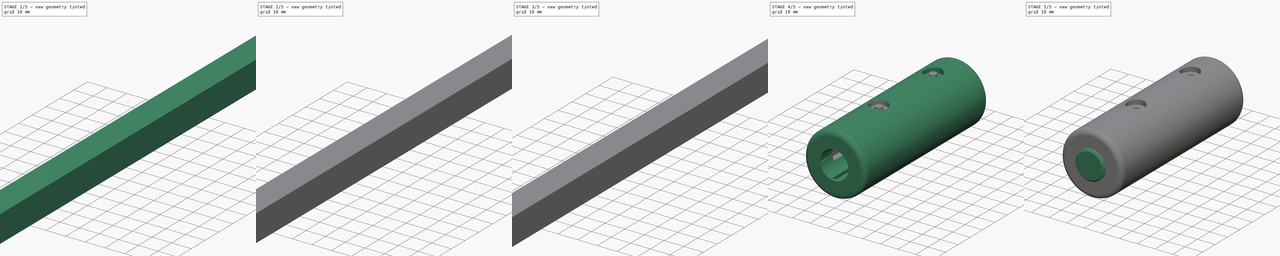
[diagram: build sequence overview — one tinted view per stage of 5, left to right]
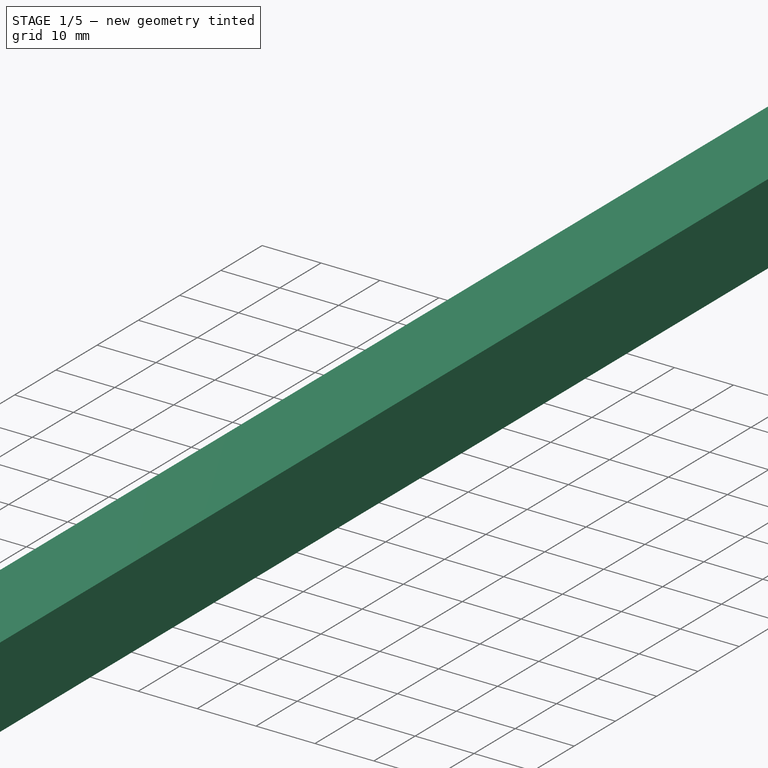
[diagram: stage 1 of 5 — iso view after this stage's code; geometry added in this stage tinted green]
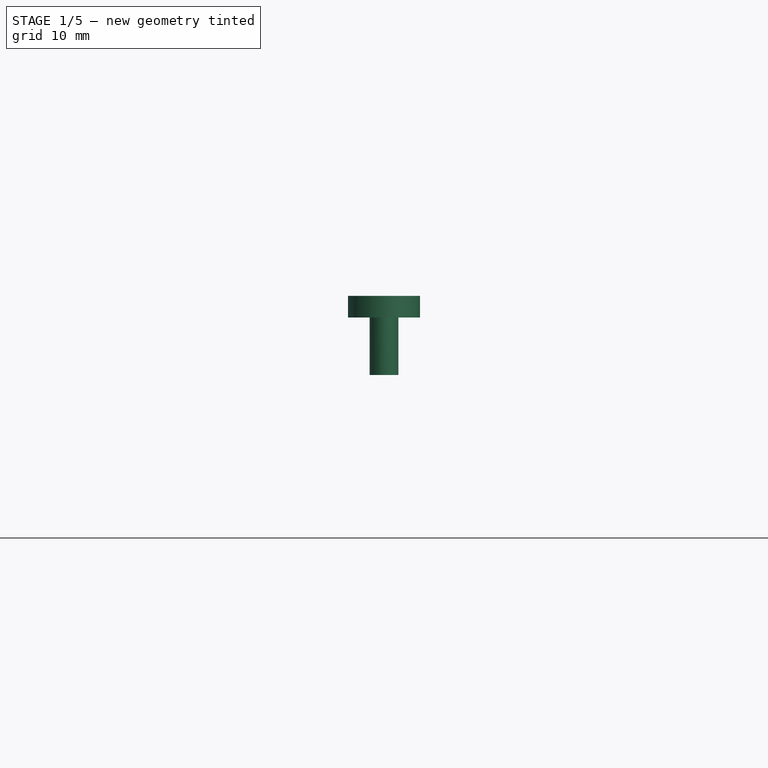
[diagram: stage 1 of 5 — front view after this stage's code; geometry added in this stage tinted green]
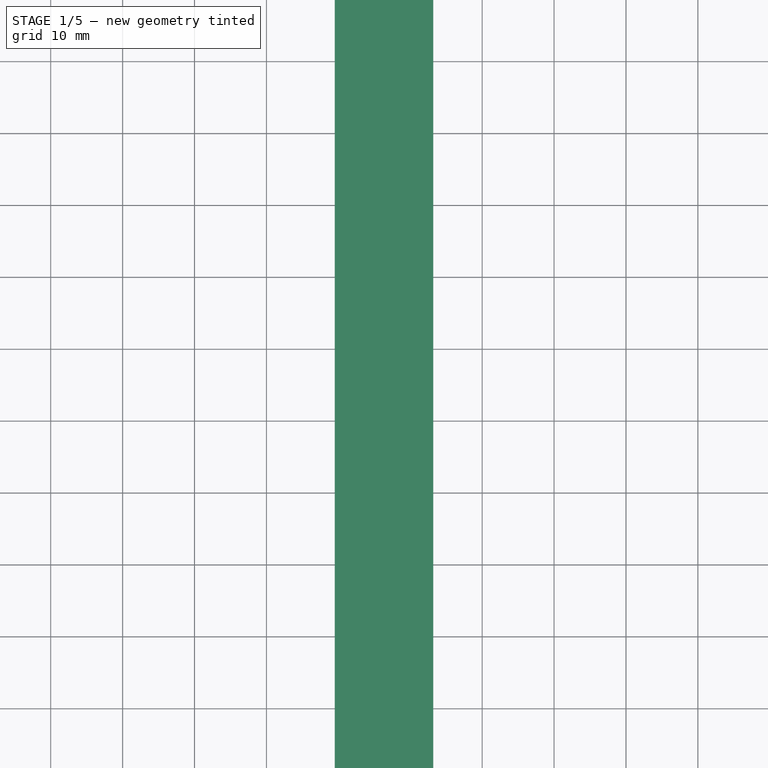
[diagram: stage 1 of 5 — top view after this stage's code; geometry added in this stage tinted green]
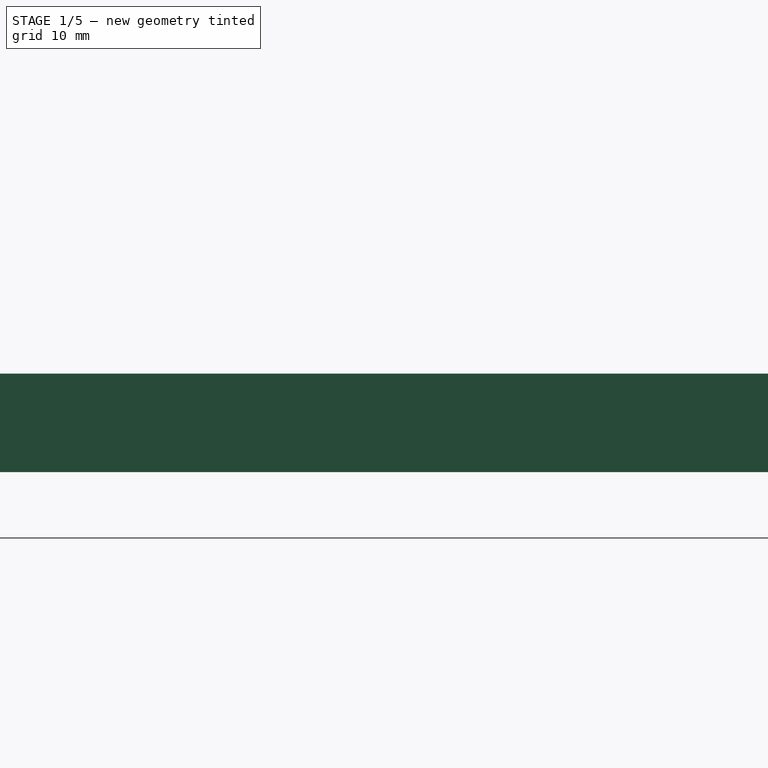
[diagram: stage 1 of 5 — right view after this stage's code; geometry added in this stage tinted green]
FCSTD DOCUMENT  (FreeCAD 0.21R33771 (Git))
Label: wand_handle
Comment: A handle for the wooden dowel of the light wand
License: All rights reserved
LicenseURL: http://en.wikipedia.org/wiki/All_rights_reserved
objects: Sketcher::SketchObject×8, Part::Extrusion×8, Part::Cut×7, Part::Box×3, Part::MultiFuse×3, Part::Cylinder×2, Part::Chamfer×1, Part::Fillet×1
note: 33 computed .brp shape members not serialized (recipe doc carries the construction recipe); baked Part::Feature solids carry a one-line shape summary decoded from their .brp

FEATURE [Sketcher::SketchObject] Sketch006  label="ScrewHeadSink"
  FullyConstrained = true
  sketch-geometry (1):
    g0: Circle CenterX=0 CenterY=0 CenterZ=0 NormalX=0 NormalY=0 NormalZ=1 AngleXU=0 Radius=5
  constraints (2):
    c: Coincident(g0,g-1)
    c: Diameter(g0) = 10
FEATURE [Part::Extrusion] Extrude006  label="ScrewHeadHole1"
  Base = -> Sketch006
  Dir = (0,0,1)
  DirMode = 2
  FaceMakerClass = Part::FaceMakerBullseye
  LengthFwd = 3
  LengthRev = 0
  Placement = pos=(6.35,11,21) rot=(0,0,1;0rad)
  Solid = true
  Symmetric = false
FEATURE [Part::Box] Box002  label="Dowel002"
  AttacherType = Attacher::AttachEngine3D
  Height = 13.7
  Length = 13.7
  Placement = pos=(-0.5,0,-0.5) rot=(0,0,1;0rad)
  Width = 609.6
FEATURE [Part::Cylinder] Cylinder  label="Cylinder001"
  Angle = 360
  AttacherType = Attacher::AttachEngine3D
  FirstAngle = 0
  Height = 10
  Placement = pos=(6.35,55,13) rot=(0,0,1;0rad)
  Radius = 2
  SecondAngle = 0
FEATURE [Part::Cylinder] Cylinder001  label="Cylinder002"
  Angle = 360
  AttacherType = Attacher::AttachEngine3D
  FirstAngle = 0
  Height = 10
  Placement = pos=(6.35,11,13) rot=(0,0,1;0rad)
  Radius = 2
  SecondAngle = 0
FEATURE [Part::MultiFuse] Fusion002  label="ScrewShaftGuides"
  Shapes = -> [Cylinder,Cylinder001]
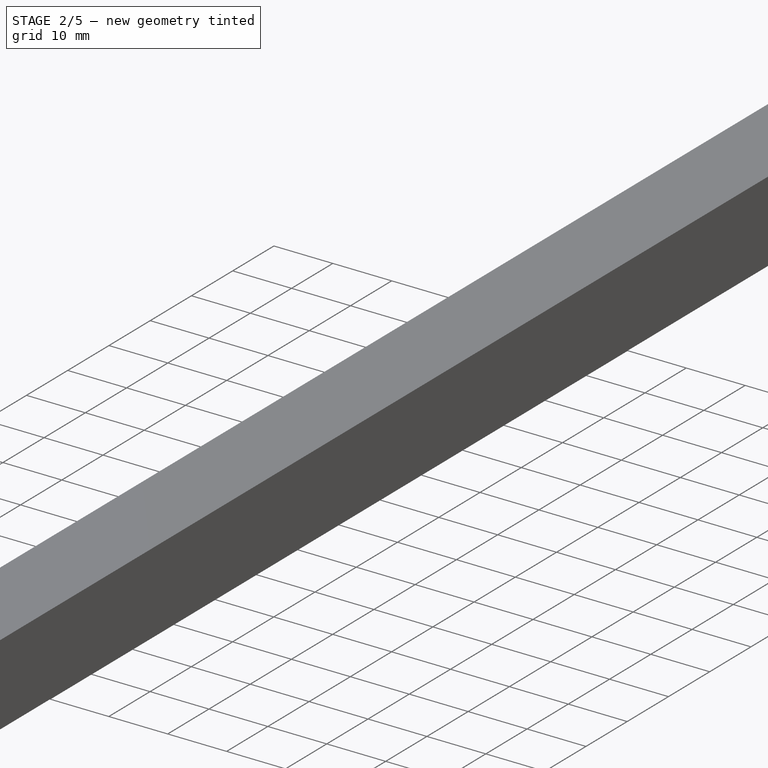
[diagram: stage 2 of 5 — iso view after this stage's code; geometry added in this stage tinted green]
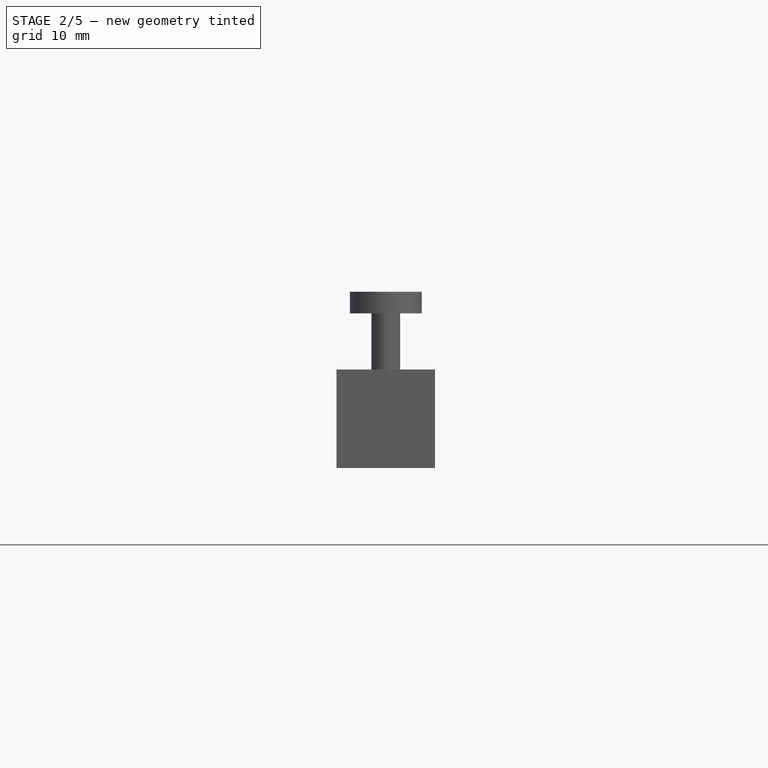
[diagram: stage 2 of 5 — front view after this stage's code; geometry added in this stage tinted green]
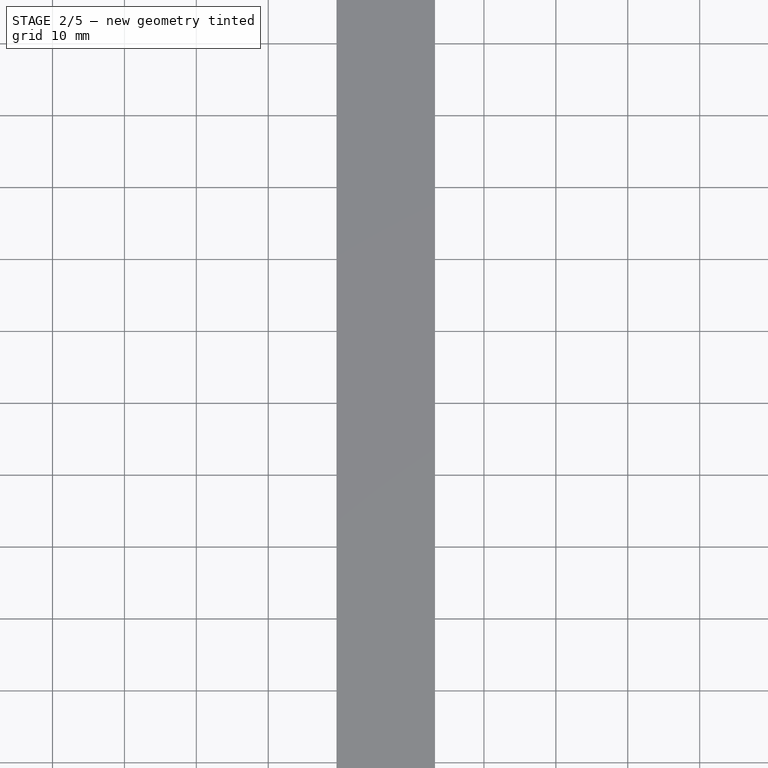
[diagram: stage 2 of 5 — top view after this stage's code; geometry added in this stage tinted green]
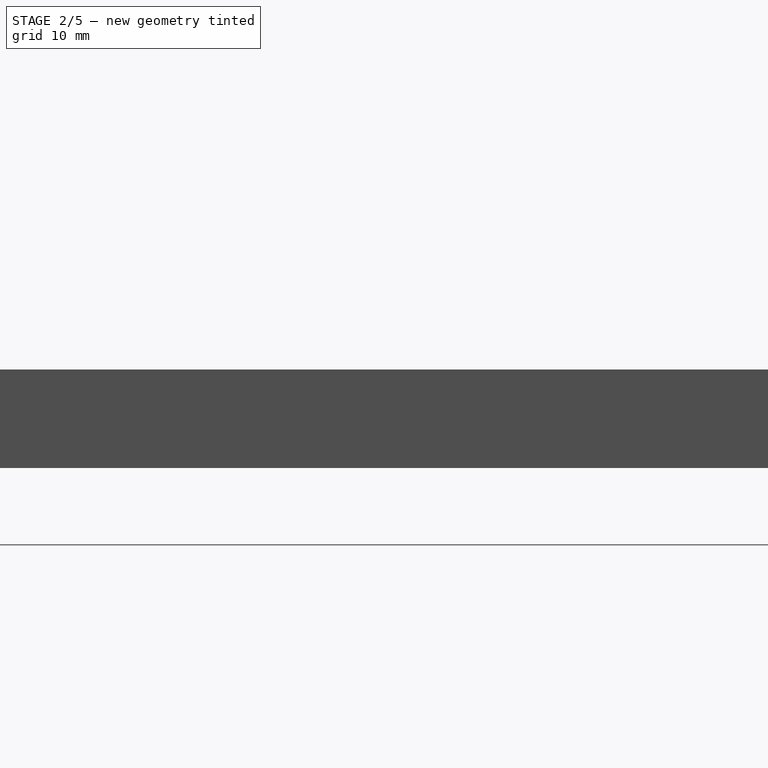
[diagram: stage 2 of 5 — right view after this stage's code; geometry added in this stage tinted green]
FEATURE [Part::Box] Box  label="Dowel"
  AttacherType = Attacher::AttachEngine3D
  Height = 12.7
  Length = 12.7
  Width = 609.6
FEATURE [Sketcher::SketchObject] Sketch  label="Base"
  FullyConstrained = true
  MapMode = 5
  Placement = pos=(0,0,0) rot=(1,0,0;1.5708rad)
  Support = -> [Box]
  sketch-geometry (1):
    g0: Circle CenterX=6.35 CenterY=6.35 CenterZ=0 NormalX=0 NormalY=0 NormalZ=1 AngleXU=0 Radius=17.5
  constraints (3):
    c: Diameter(g0) = 35
    c: DistanceX(g-1,g0) = 6.35
    c: DistanceY(g-1,g0) = 6.35
FEATURE [Part::Extrusion] Extrude  label="Cylinder"
  Base = -> Sketch
  Dir = (0,1,0)
  DirMode = 0
  FaceMakerClass = Part::FaceMakerBullseye
  LengthFwd = 100
  LengthRev = 0
  Placement = pos=(0,-25,0) rot=(0,0,1;0rad)
  Solid = true
  Symmetric = false
FEATURE [Part::Fillet] Fillet
  Base = -> Extrude
  Edges = 2 edges r=3: [Edge2,Edge3]
FEATURE [Sketcher::SketchObject] Sketch003  label="SwitchCutout"
  FullyConstrained = true
  MapMode = 11
  Placement = pos=(6.35,-25,6.35) rot=(0.57735,-0.57735,0.57735;2.0944rad)
  Support = -> [Fillet]
  sketch-geometry (12):
    g0: LineSegment StartX=-8 StartY=2.1 StartZ=0 EndX=-8 EndY=-2.1 EndZ=0
    g1: LineSegment StartX=-8 StartY=-2.1 StartZ=0 EndX=-7.71946 EndY=-2.1 EndZ=0
    g2: LineSegment StartX=-8 StartY=2.1 StartZ=0 EndX=-7.71946 EndY=2.1 EndZ=0
    g3: LineSegment StartX=8 StartY=2.1 StartZ=0 EndX=8 EndY=-2.1 EndZ=0
    g4: LineSegment StartX=8 StartY=-2.1 StartZ=0 EndX=7.71946 EndY=-2.1 EndZ=0
    g5: LineSegment StartX=8 StartY=2.1 StartZ=0 EndX=7.71946 EndY=2.1 EndZ=0
    g6: LineSegment StartX=-0.8 StartY=7.9599 StartZ=0 EndX=-0.8 EndY=8.5 EndZ=0
    g7: LineSegment StartX=-0.8 StartY=8.5 StartZ=0 EndX=0.8 EndY=8.5 EndZ=0
    g8: LineSegment StartX=0.8 StartY=8.5 StartZ=0 EndX=0.8 EndY=7.9599 EndZ=0
    g9: ArcOfCircle CenterX=0 CenterY=0 CenterZ=0 NormalX=0 NormalY=0 NormalZ=1 AngleXU=0 Radius=8 StartAngle=3.4072 EndAngle=6.01757
    g10: ArcOfCircle CenterX=0 CenterY=0 CenterZ=0 NormalX=0 NormalY=0 NormalZ=1 AngleXU=0 Radius=8 StartAngle=1.67096 EndAngle=2.87598
    g11: ArcOfCircle CenterX=0 CenterY=0 CenterZ=0 NormalX=0 NormalY=0 NormalZ=1 AngleXU=0 Radius=8 StartAngle=0.265612 EndAngle=1.47063
  constraints (36):
    c: Vertical(g0)
    c: Coincident(g1,g0)
    c: Horizontal(g1)
    c: Coincident(g2,g0)
    c: Horizontal(g2)
    c: Vertical(g3)
    c: Coincident(g4,g3)
    c: Horizontal(g4)
    c: Coincident(g5,g3)
    c: Horizontal(g5)
    c: Vertical(g6)
    c: Coincident(g7,g6)
    c: Horizontal(g7)
    c: Coincident(g8,g7)
    c: Vertical(g8)
    c: DistanceX(g7,g7) = 1.6
    c: DistanceY(g0,g0) = 4.2
    c: DistanceX(g-1,g3) = 8
    c: DistanceX(g0,g-1) = 8
    c: DistanceY(g0,g-1) = 2.1
    c: DistanceY(g-1,g6) = 8.5
    c: DistanceX(g6,g-1) = 0.8
    c: Coincident(g9,g-1)
    c: Coincident(g9,g1)
    c: Coincident(g9,g4)
    c: Coincident(g10,g9)
    c: Coincident(g10,g2)
    c: Coincident(g10,g6)
    c: Coincident(g11,g9)
    c: Coincident(g11,g5)
    c: Coincident(g11,g8)
    c: Radius(g10) = 8
    c: Radius(g11) = 8
    c: DistanceY(g9,g5) = 2.1
    c: DistanceY(g3,g9) = 2.1
    c: Radius(g9) = 8
FEATURE [Part::Extrusion] Extrude003  label="SwitchCutoutPrimary"
  Base = -> Sketch003
  Dir = (2e-16,-1,2e-16)
  DirMode = 2
  FaceMakerClass = Part::FaceMakerBullseye
  LengthFwd = 20
  LengthRev = 0
  Placement = pos=(0,20,0) rot=(0,0,1;0rad)
  Solid = true
  Symmetric = false
FEATURE [Part::Box] Box001  label="Dowel001"
  AttacherType = Attacher::AttachEngine3D
  Height = 12.7
  Length = 12.7
  Width = 609.6
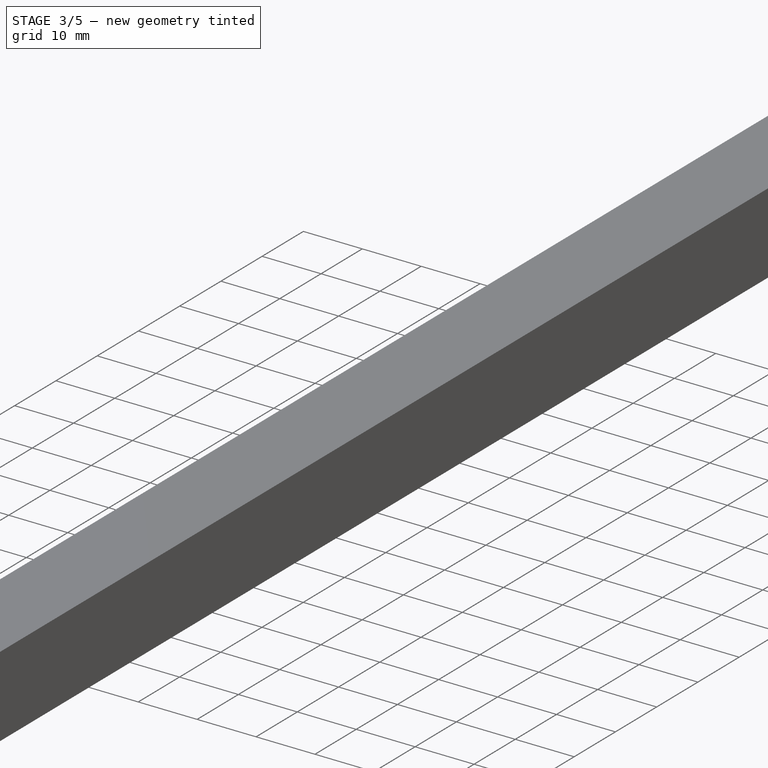
[diagram: stage 3 of 5 — iso view after this stage's code; geometry added in this stage tinted green]
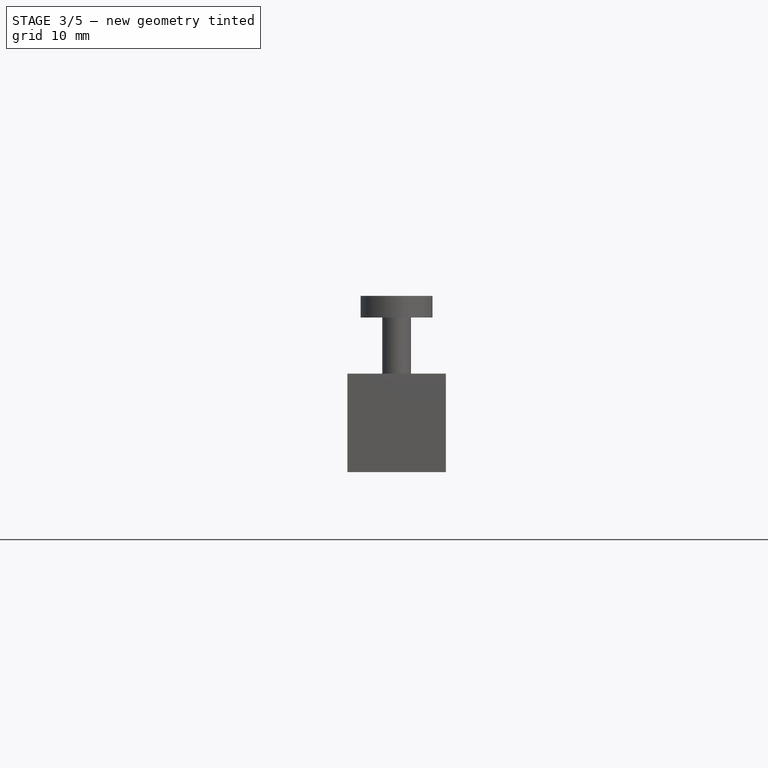
[diagram: stage 3 of 5 — front view after this stage's code; geometry added in this stage tinted green]
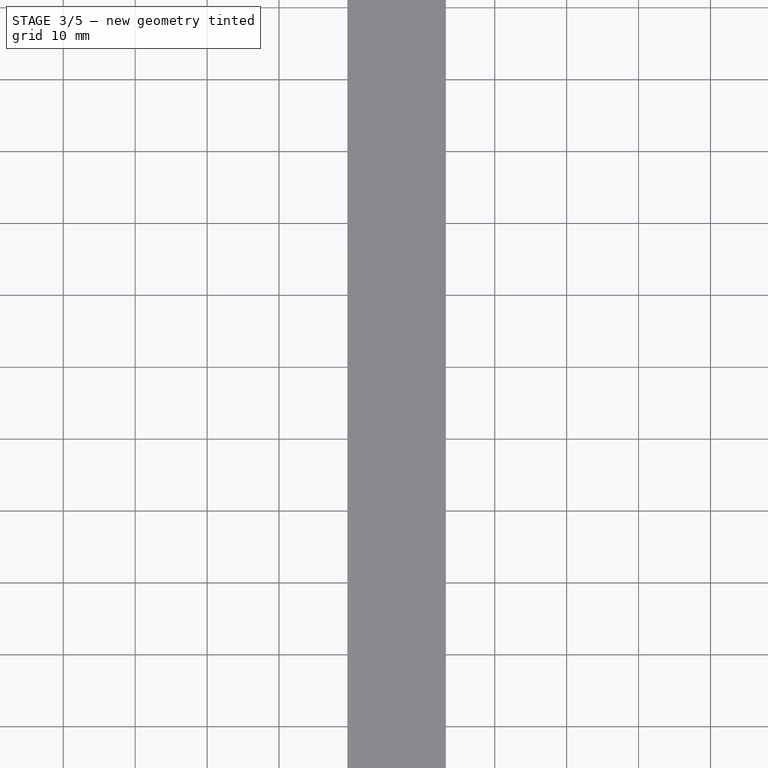
[diagram: stage 3 of 5 — top view after this stage's code; geometry added in this stage tinted green]
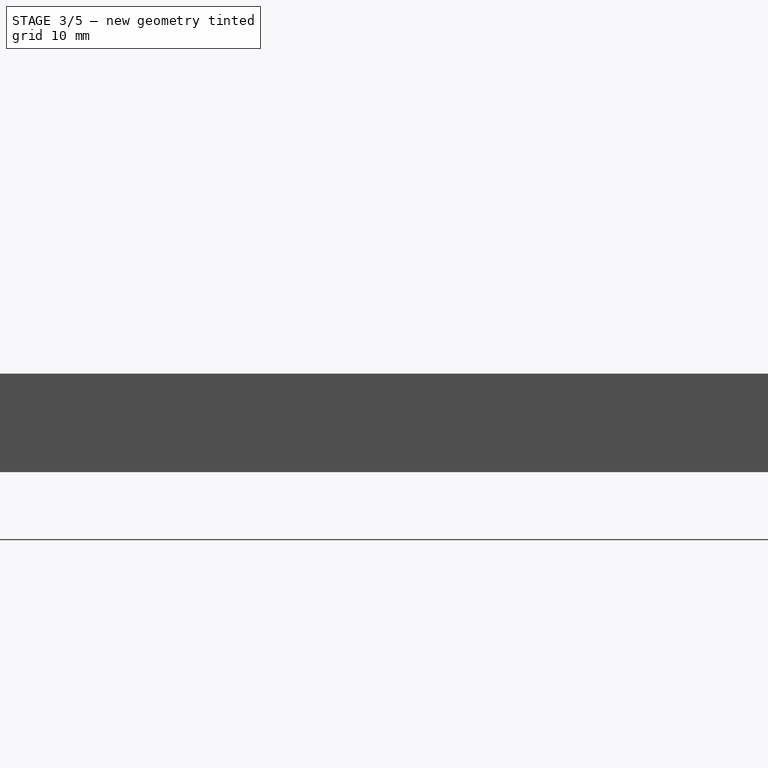
[diagram: stage 3 of 5 — right view after this stage's code; geometry added in this stage tinted green]
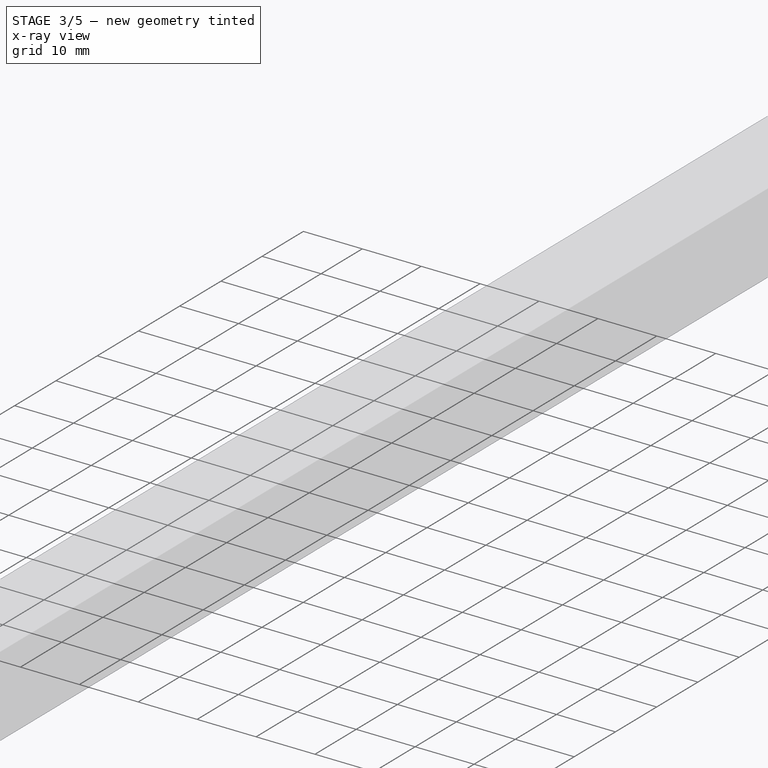
[diagram: stage 3 of 5 — x-ray composite at the iso view; earlier geometry ghosted, this stage's added geometry solid]
FEATURE [Sketcher::SketchObject] Sketch004  label="SwitchCutoutExpansionSketch"
  FullyConstrained = true
  MapMode = 5
  Placement = pos=(-3.2e-15,20,14.35) rot=(0,0,1;0rad)
  Support = -> [Extrude003]
  sketch-geometry (4):
    g0: LineSegment StartX=4.25 StartY=-25 StartZ=0 EndX=8.45 EndY=-25 EndZ=0
    g1: LineSegment StartX=8.45 StartY=-25 StartZ=0 EndX=8.45 EndY=-43 EndZ=0
    g2: LineSegment StartX=8.45 StartY=-43 StartZ=0 EndX=4.25 EndY=-43 EndZ=0
    g3: LineSegment StartX=4.25 StartY=-43 StartZ=0 EndX=4.25 EndY=-25 EndZ=0
  constraints (12):
    c: Coincident(g0,g1)
    c: Coincident(g1,g2)
    c: Coincident(g2,g3)
    c: Coincident(g3,g0)
    c: Horizontal(g0)
    c: Horizontal(g2)
    c: Vertical(g1)
    c: Vertical(g3)
    c: DistanceX(g-1,g0) = 4.25
    c: DistanceY(g0,g-1) = 25
    c: DistanceX(g0,g0) = 4.2
    c: DistanceY(g3,g3) = 18
FEATURE [Part::Extrusion] Extrude004  label="CutoutSecondary"
  Base = -> Sketch004
  Dir = (-2e-16,2e-16,1)
  DirMode = 2
  FaceMakerClass = Part::FaceMakerBullseye
  LengthFwd = 20
  LengthRev = 0
  Placement = pos=(0,0,-17.5) rot=(0,0,1;0rad)
  Solid = true
  Symmetric = false
FEATURE [Part::MultiFuse] Fusion001  label="SwitchCutoutCombined"
  Shapes = -> [Extrude004,Extrude003]
FEATURE [Part::Cut] Cut  label="HandleWithSwitchHole"
  Base = -> Fillet
  Tool = -> Fusion001
FEATURE [Part::Cut] Cut001  label="HandleWithDowelShaft"
  Base = -> Cut
  Tool = -> Box001
FEATURE [Sketcher::SketchObject] Sketch005  label="WireRoutingHole"
  FullyConstrained = true
  MapMode = 11
  Placement = pos=(6.35,75,6.35) rot=(0.57735,-0.57735,0.57735;2.0944rad)
  Support = -> [Cut001]
  sketch-geometry (4):
    g0: LineSegment StartX=3.35 StartY=6.35 StartZ=0 EndX=-3.35 EndY=6.35 EndZ=0
    g1: LineSegment StartX=-3.35 StartY=6.35 StartZ=0 EndX=-3.35 EndY=10.35 EndZ=0
    g2: LineSegment StartX=-3.35 StartY=10.35 StartZ=0 EndX=3.35 EndY=10.35 EndZ=0
    g3: LineSegment StartX=3.35 StartY=10.35 StartZ=0 EndX=3.35 EndY=6.35 EndZ=0
  constraints (12):
    c: Coincident(g0,g1)
    c: Coincident(g1,g2)
    c: Coincident(g2,g3)
    c: Coincident(g3,g0)
    c: Horizontal(g0)
    c: Horizontal(g2)
    c: Vertical(g1)
    c: Vertical(g3)
    c: DistanceX(g-1,g0) = 3.35
    c: DistanceY(g-1,g0) = 6.35
    c: DistanceX(g0,g0) = 6.7
    c: DistanceY(g3,g3) = 4
FEATURE [Part::Extrusion] Extrude005
  Base = -> Sketch005
  Dir = (0,-1,2e-16)
  DirMode = 2
  FaceMakerClass = Part::FaceMakerBullseye
  LengthFwd = 90
  LengthRev = 0
  Solid = true
  Symmetric = false
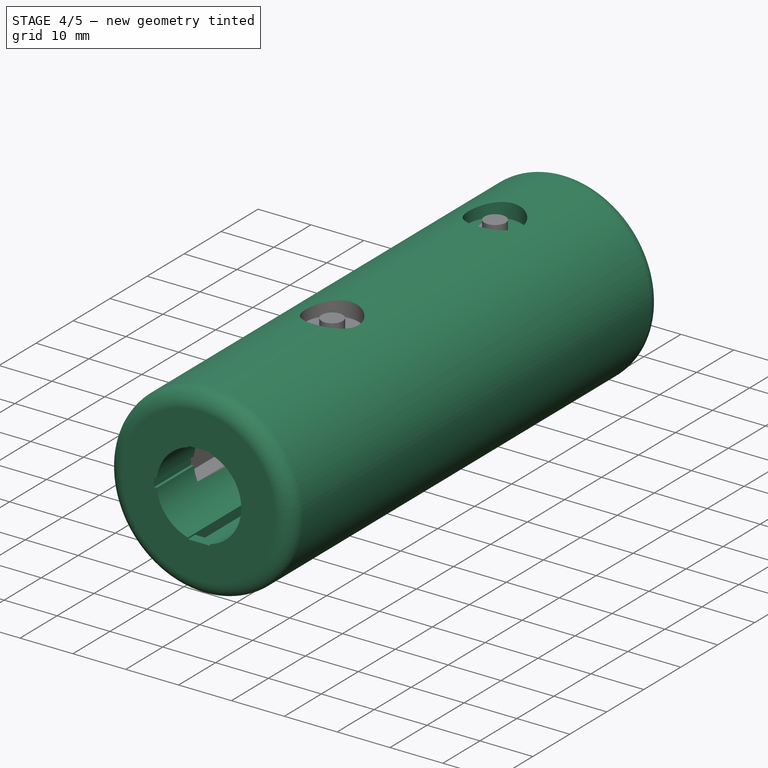
[diagram: stage 4 of 5 — iso view after this stage's code; geometry added in this stage tinted green]
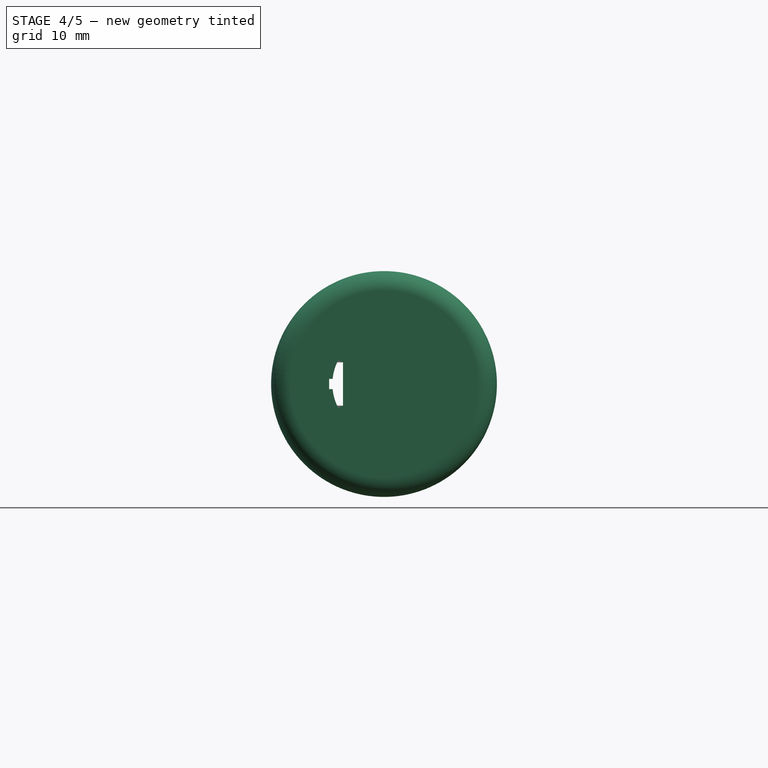
[diagram: stage 4 of 5 — front view after this stage's code; geometry added in this stage tinted green]
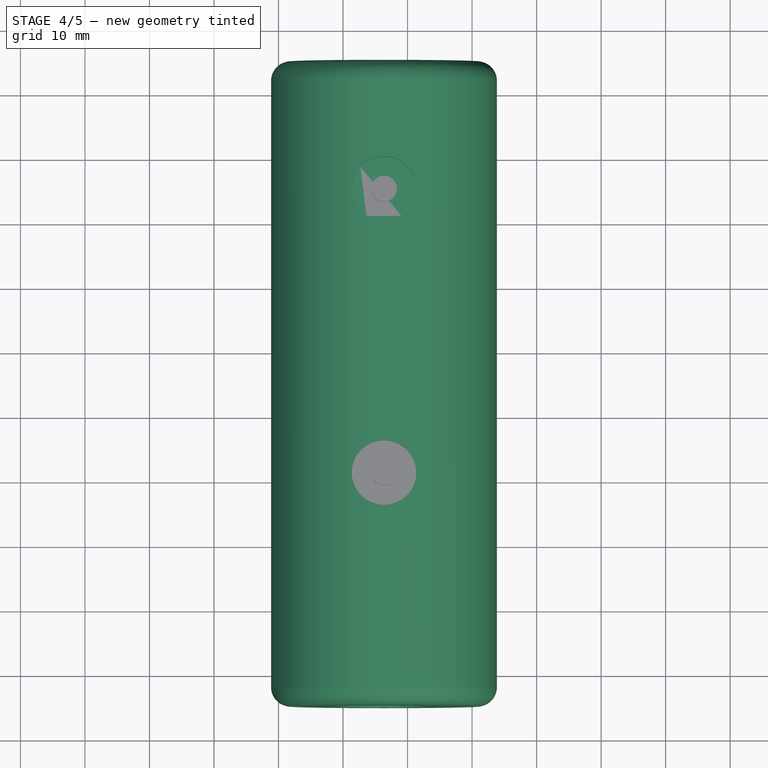
[diagram: stage 4 of 5 — top view after this stage's code; geometry added in this stage tinted green]
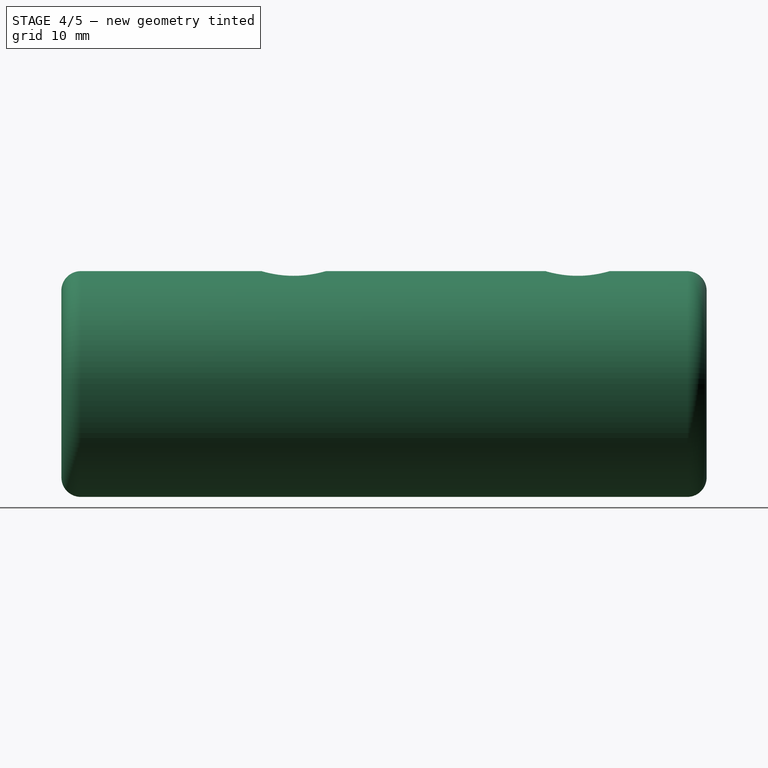
[diagram: stage 4 of 5 — right view after this stage's code; geometry added in this stage tinted green]
FEATURE [Part::Cut] Cut002  label="HandleWithWireRouting"
  Base = -> Cut001
  Tool = -> Extrude005
FEATURE [Sketcher::SketchObject] Sketch007  label="ScrewHeadSink001"
  FullyConstrained = true
  sketch-geometry (1):
    g0: Circle CenterX=0 CenterY=0 CenterZ=0 NormalX=0 NormalY=0 NormalZ=1 AngleXU=0 Radius=5
  constraints (2):
    c: Coincident(g0,g-1)
    c: Diameter(g0) = 10
FEATURE [Part::Extrusion] Extrude007  label="ScrewHeadHole2"
  Base = -> Sketch007
  Dir = (0,0,1)
  DirMode = 2
  FaceMakerClass = Part::FaceMakerBullseye
  LengthFwd = 3
  LengthRev = 0
  Placement = pos=(6.35,55,21) rot=(0,0,1;0rad)
  Solid = true
  Symmetric = false
FEATURE [Part::Cut] Cut003
  Base = -> Cut002
  Tool = -> Extrude006
FEATURE [Part::Cut] Cut004  label="HandleWithScrewHeadSinks"
  Base = -> Cut003
  Tool = -> Extrude007
FEATURE [Part::Cut] Cut005  label="HandleWithWidenedShaft"
  Base = -> Cut004
  Tool = -> Box002
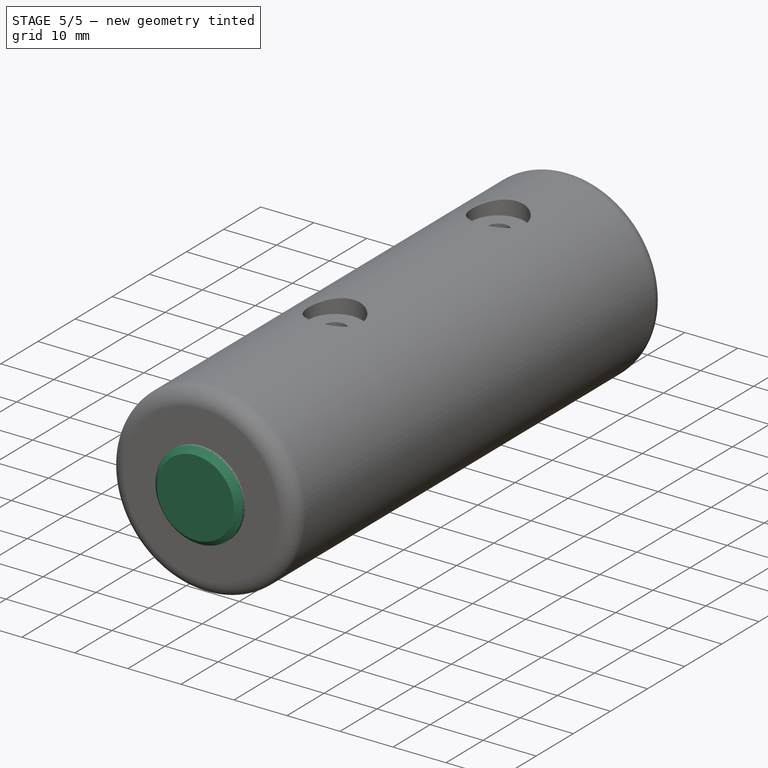
[diagram: stage 5 of 5 — iso view after this stage's code; geometry added in this stage tinted green]
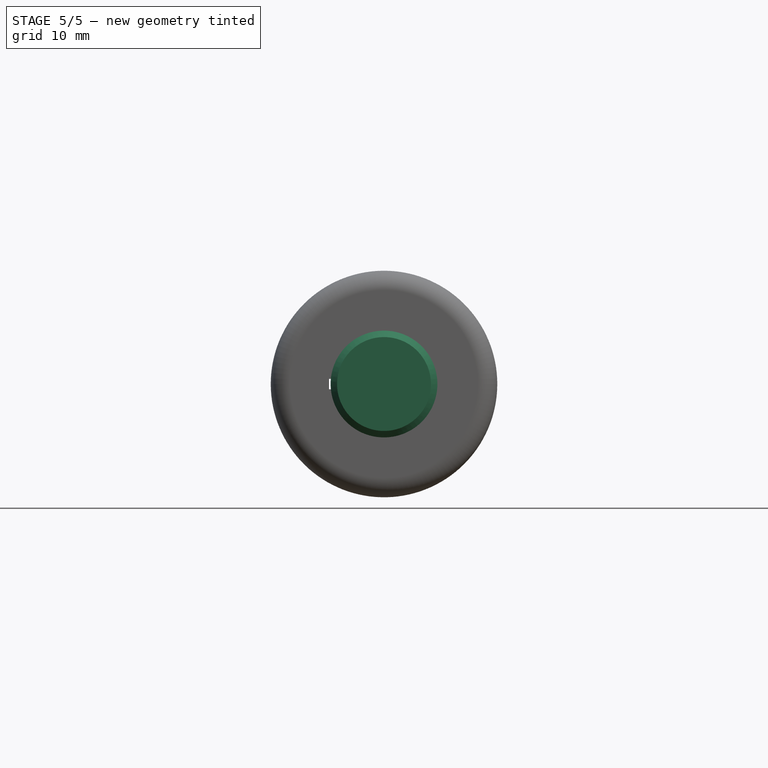
[diagram: stage 5 of 5 — front view after this stage's code; geometry added in this stage tinted green]
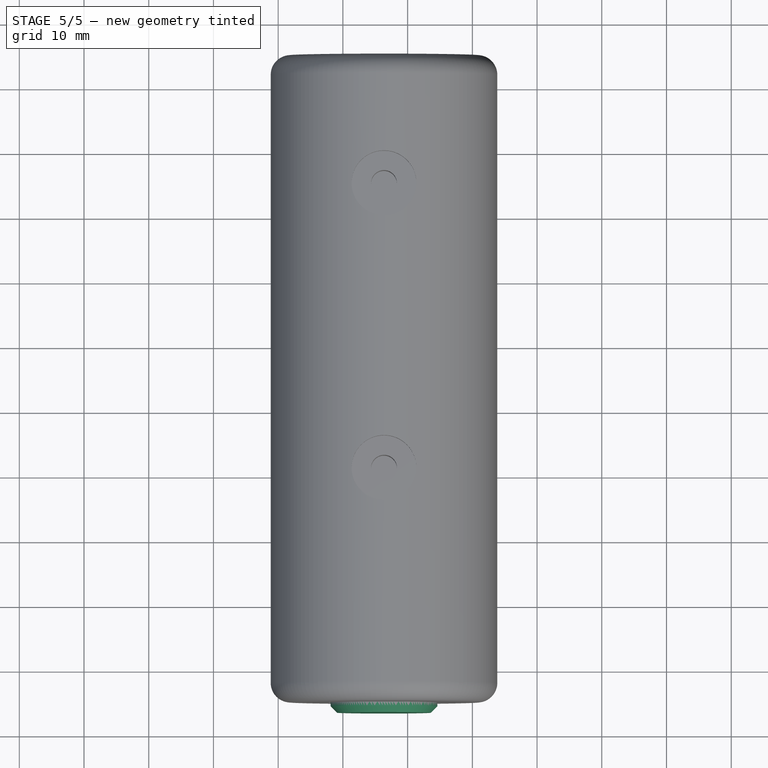
[diagram: stage 5 of 5 — top view after this stage's code; geometry added in this stage tinted green]
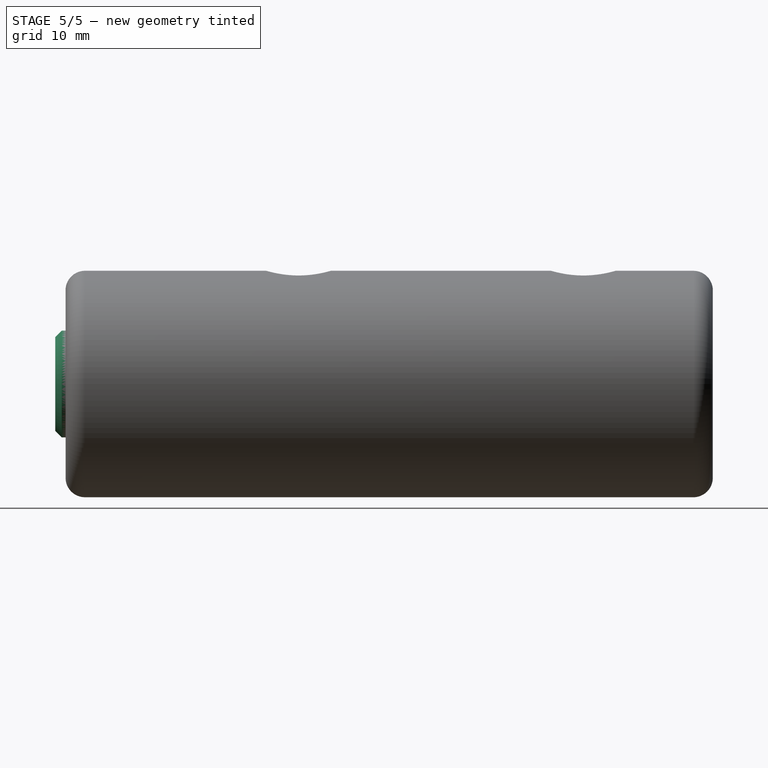
[diagram: stage 5 of 5 — right view after this stage's code; geometry added in this stage tinted green]
FEATURE [Sketcher::SketchObject] Sketch001  label="Sketch"
  FullyConstrained = true
  sketch-geometry (1):
    g0: Circle CenterX=0 CenterY=0 CenterZ=0 NormalX=0 NormalY=0 NormalZ=1 AngleXU=0 Radius=8.25
  constraints (2):
    c: Coincident(g0,g-1)
    c: Diameter(g0) = 16.5
FEATURE [Part::Extrusion] Extrude001  label="FrontPanel"
  Base = -> Sketch001
  Dir = (0,0,1)
  DirMode = 2
  FaceMakerClass = Part::FaceMakerBullseye
  LengthFwd = 1.6
  LengthRev = 0
  Solid = true
  Symmetric = false
FEATURE [Part::Chamfer] Chamfer
  Base = -> Extrude001
  Edges = 1 edges r=1: [Edge3]
FEATURE [Sketcher::SketchObject] Sketch002  label="Body"
  FullyConstrained = true
  MapMode = 5
  Placement = pos=(0,0,0) rot=(1,0,0;3.14159rad)
  Support = -> [Chamfer]
  sketch-geometry (4):
    g0: LineSegment StartX=-7.5 StartY=2.1 StartZ=0 EndX=7.5 EndY=2.1 EndZ=0
    g1: LineSegment StartX=7.5 StartY=2.1 StartZ=0 EndX=7.5 EndY=-2.1 EndZ=0
    g2: LineSegment StartX=7.5 StartY=-2.1 StartZ=0 EndX=-7.5 EndY=-2.1 EndZ=0
    g3: LineSegment StartX=-7.5 StartY=-2.1 StartZ=0 EndX=-7.5 EndY=2.1 EndZ=0
  constraints (12):
    c: Coincident(g0,g1)
    c: Coincident(g1,g2)
    c: Coincident(g2,g3)
    c: Coincident(g3,g0)
    c: Horizontal(g0)
    c: Horizontal(g2)
    c: Vertical(g1)
    c: Vertical(g3)
    c: DistanceX(g2,g2) = 15
    c: DistanceY(g3,g3) = 4.2
    c: DistanceY(g-1,g0) = 2.1
    c: DistanceX(g0,g-1) = 7.5
FEATURE [Part::Extrusion] Extrude002  label="Body001"
  Base = -> Sketch002
  Dir = (0,0,-1)
  DirMode = 2
  FaceMakerClass = Part::FaceMakerBullseye
  LengthFwd = 17.4
  LengthRev = 0
  Solid = true
  Symmetric = false
FEATURE [Part::MultiFuse] Fusion  label="Switch"
  Placement = pos=(6.35,-25,6.35) rot=(1,0,0;1.5708rad)
  Shapes = -> [Extrude002,Chamfer]
FEATURE [Part::Cut] Cut006  label="HandleWithScrewGuides"
  Base = -> Cut005
  Tool = -> Fusion002
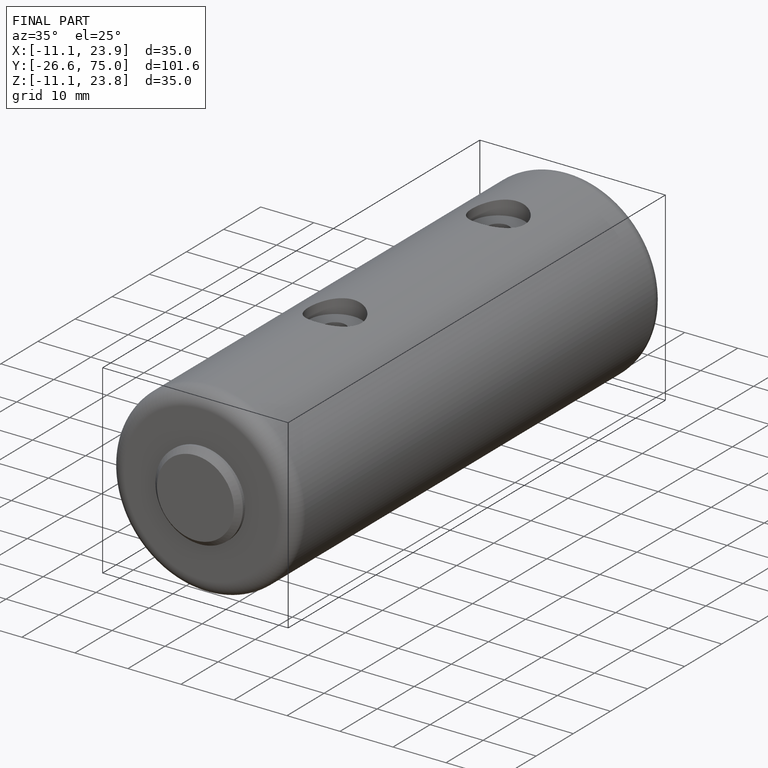
[diagram: finished part — iso view with bounding-box wireframe]
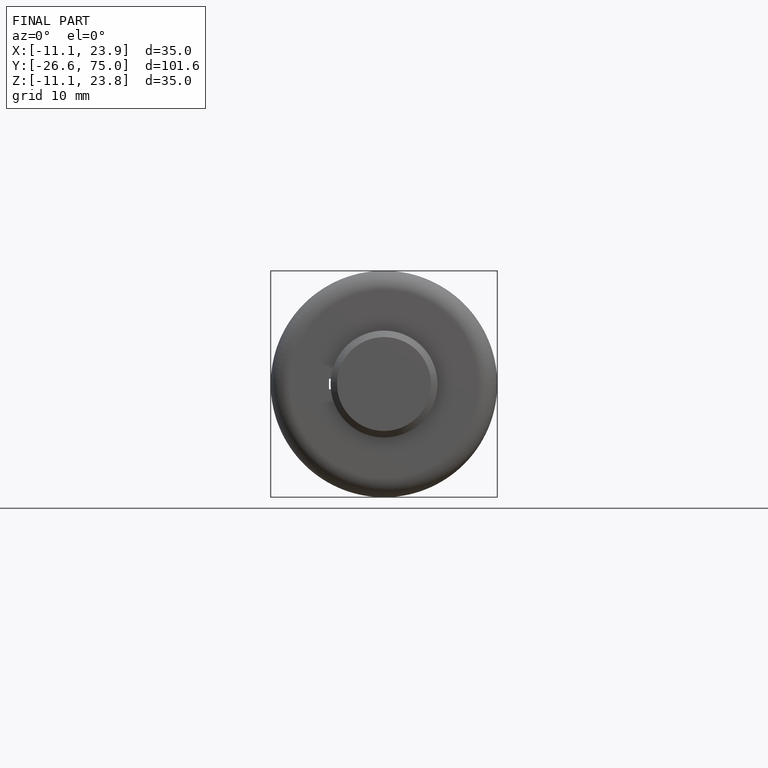
[diagram: finished part — front view with bounding-box wireframe]
